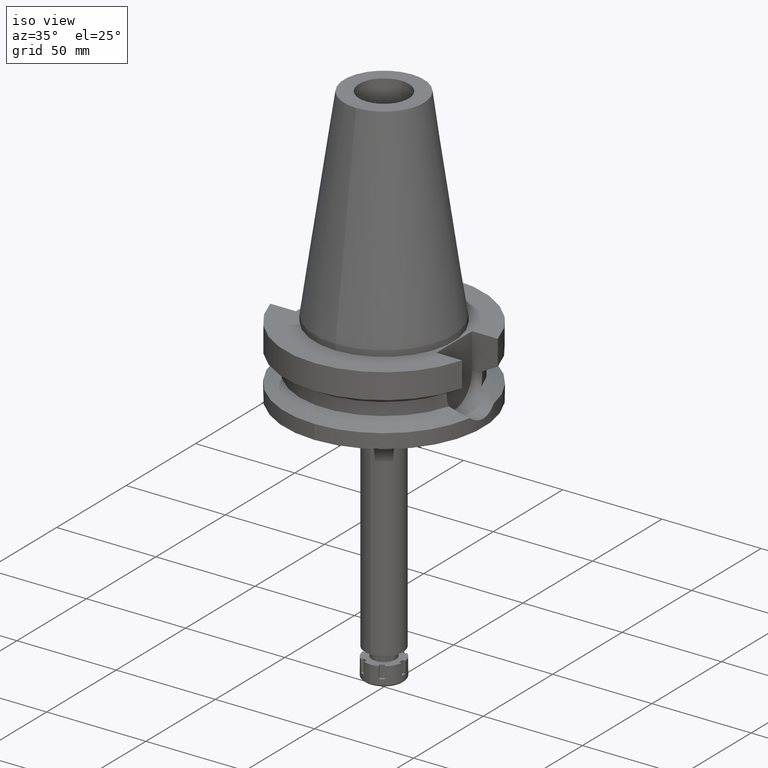
[diagram: clean part render]
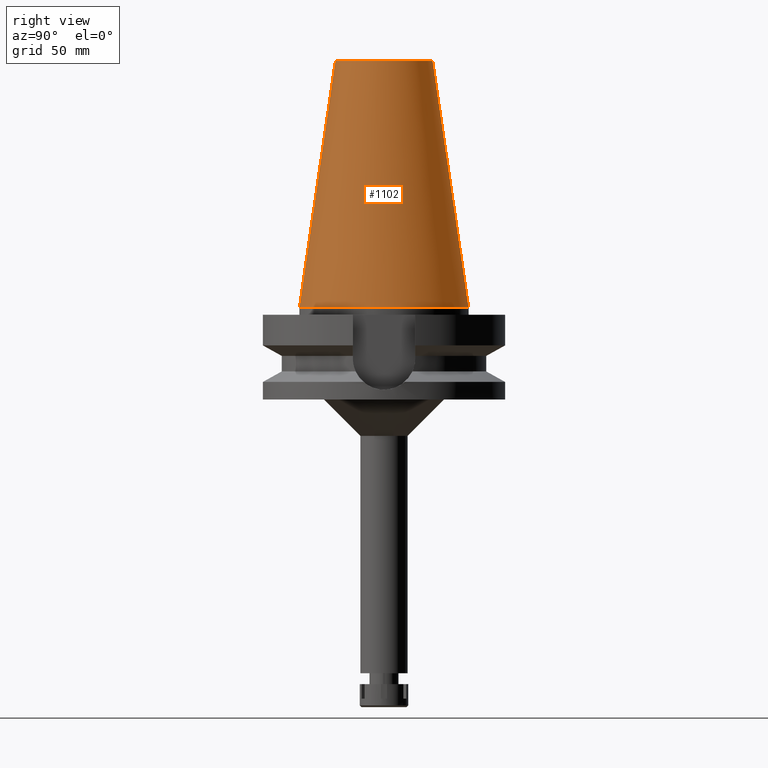
[diagram: tour spotlight — one face highlighted and labeled with its STEP entity id]
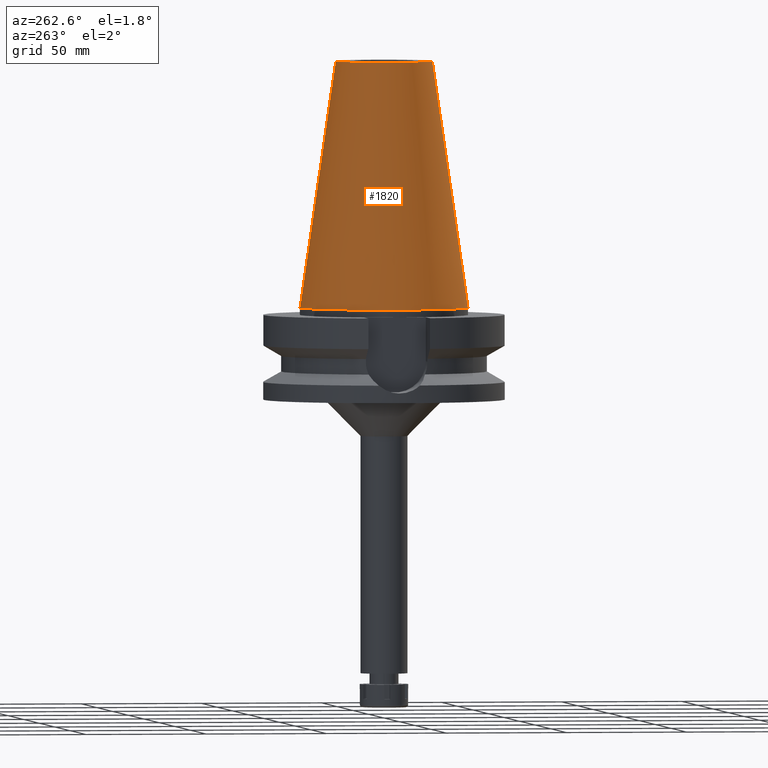
[diagram: tour spotlight — one face highlighted and labeled with its STEP entity id]
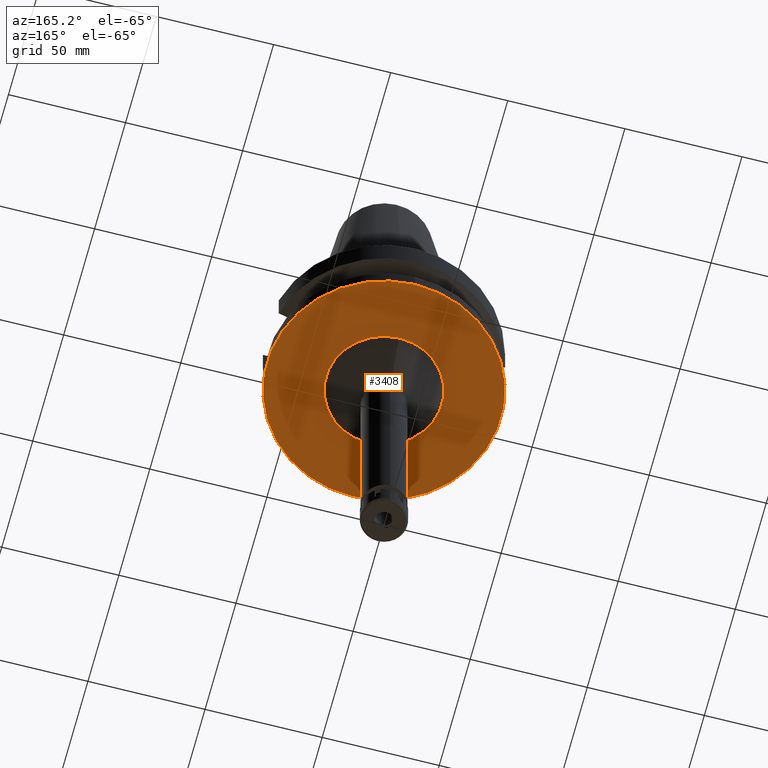
[diagram: tour spotlight — one face highlighted and labeled with its STEP entity id]
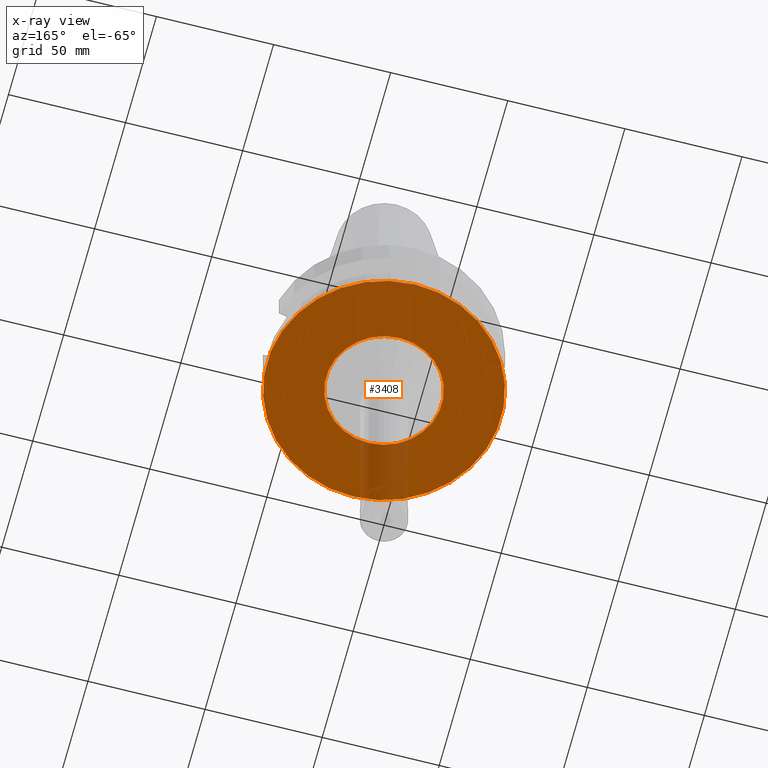
[diagram: x-ray of the same camera — body ghosted, this tour face saturated]
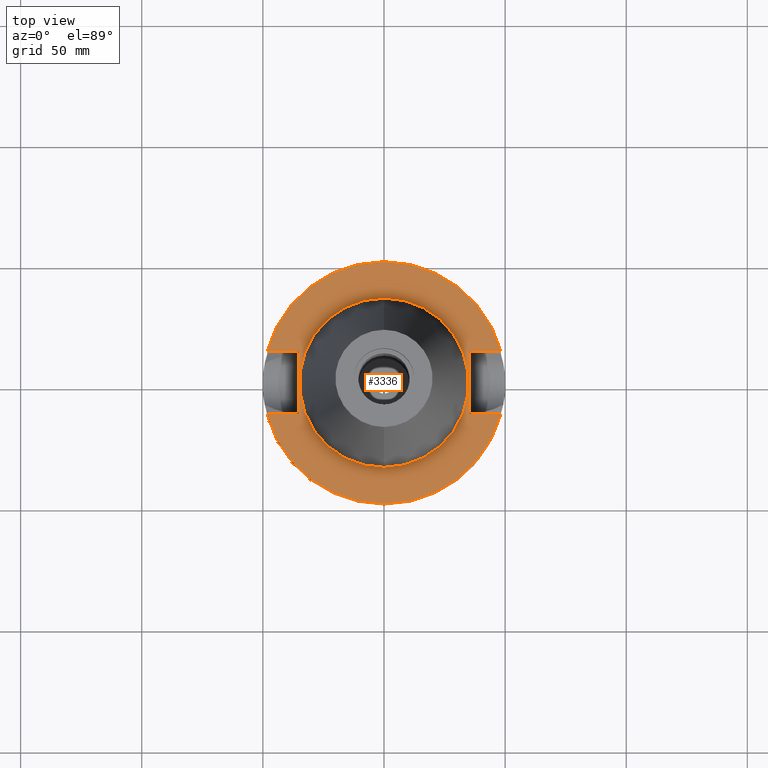
[diagram: tour spotlight — one face highlighted and labeled with its STEP entity id]
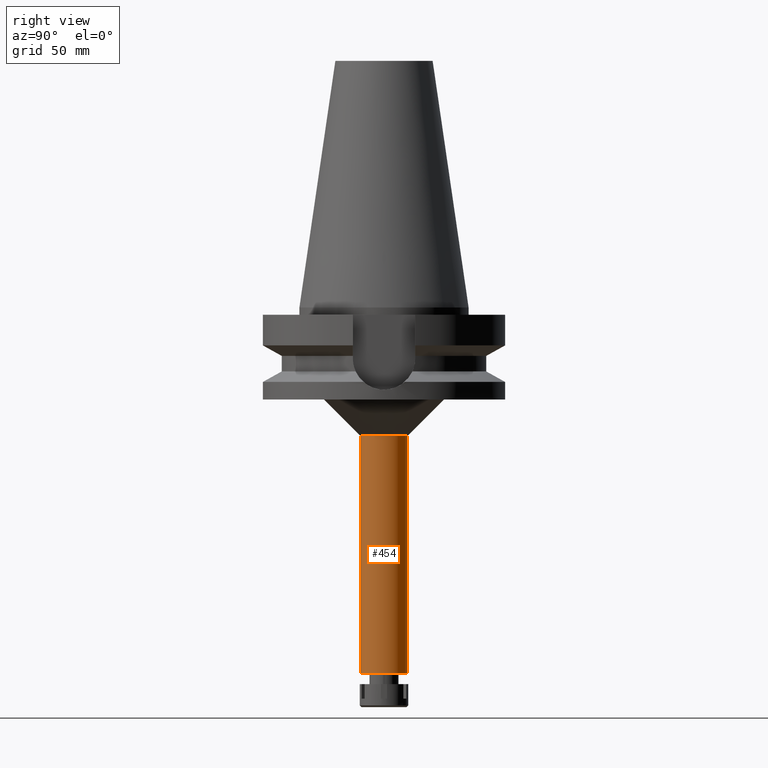
[diagram: tour spotlight — one face highlighted and labeled with its STEP entity id]
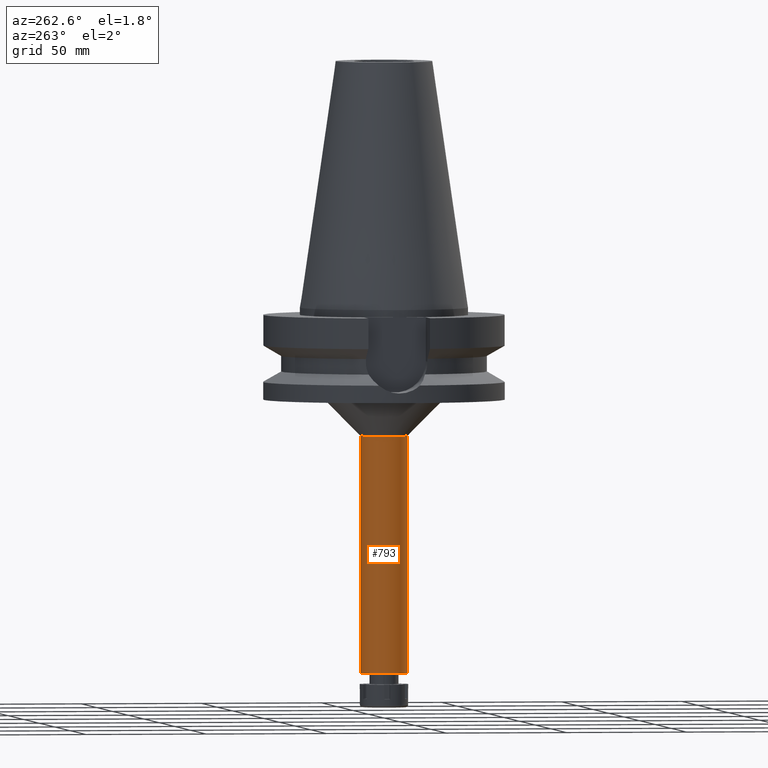
[diagram: tour spotlight — one face highlighted and labeled with its STEP entity id]
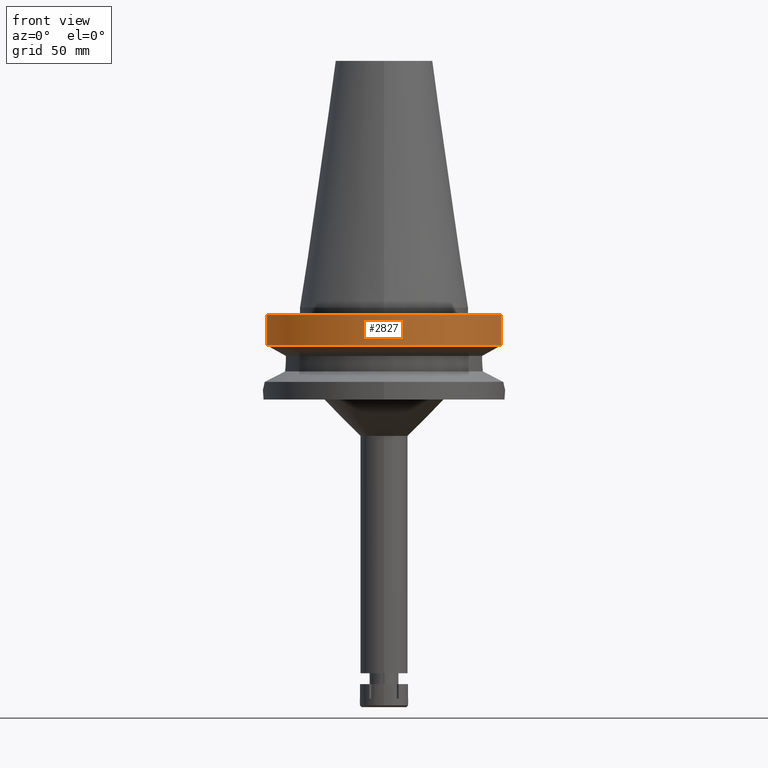
[diagram: tour spotlight — one face highlighted and labeled with its STEP entity id]
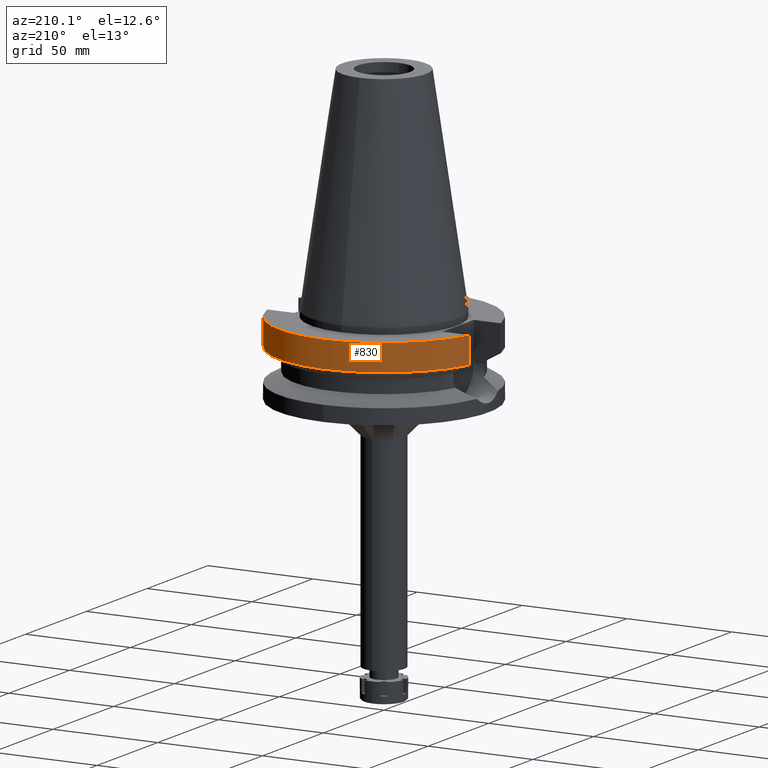
[diagram: tour spotlight — one face highlighted and labeled with its STEP entity id]
A machine part: a face-by-face anatomy tour. The part has 93 B-rep faces; the first image is the clean iso view, then the 8 largest visible faces are spotlighted one at a time (largest first), each with its STEP entity span.

Face 1 — right view, entity #1102. In plain terms, the highlighted conical surface has half-angle 8.297 deg.
Definition (entity closure, byte-faithful):
#1 = EDGE_CURVE ( 'NONE', #2407, #212, #565, .T. ) ;
#57 = CIRCLE ( 'NONE', #2155, 34.92499999999999716 ) ;
#124 = CIRCLE ( 'NONE', #1556, 20.07942971896000017 ) ;
#212 = VERTEX_POINT ( 'NONE', #3314 ) ;
#266 = ORIENTED_EDGE ( 'NONE', *, *, #1940, .F. ) ;
#565 = LINE ( 'NONE', #1148, #3692 ) ;
#566 = DIRECTION ( 'NONE',  ( 0.0000000000000000000, -1.000000000000000000, 0.0000000000000000000 ) ) ;
#676 = DIRECTION ( 'NONE',  ( 0.0000000000000000000, 1.000000000000000000, 0.0000000000000000000 ) ) ;
#795 = EDGE_CURVE ( 'NONE', #1790, #2407, #124, .T. ) ;
#939 = CARTESIAN_POINT ( 'NONE',  ( 0.0000000000000000000, 20.07942971896000017, 101.7999999999999972 ) ) ;
#957 = CARTESIAN_POINT ( 'NONE',  ( 0.0000000000000000000, 1.847992019912999597E-14, 6.252776074689000785E-13 ) ) ;
#972 = ORIENTED_EDGE ( 'NONE', *, *, #1, .T. ) ;
#1102 = ADVANCED_FACE ( 'NONE', ( #2885 ), #2315, .T. ) ;
#1148 = CARTESIAN_POINT ( 'NONE',  ( 0.0000000000000000000, -20.07942971896000017, 101.7999999999999972 ) ) ;
#1300 = ORIENTED_EDGE ( 'NONE', *, *, #3204, .F. ) ;
#1359 = AXIS2_PLACEMENT_3D ( 'NONE', #1422, #1705, #566 ) ;
#1422 = CARTESIAN_POINT ( 'NONE',  ( 0.0000000000000000000, 1.847992019912999597E-14, 50.89999999999999858 ) ) ;
#1450 = ORIENTED_EDGE ( 'NONE', *, *, #795, .T. ) ;
#1525 = DIRECTION ( 'NONE',  ( 0.0000000000000000000, 0.0000000000000000000, -1.000000000000000000 ) ) ;
#1542 = DIRECTION ( 'NONE',  ( 0.0000000000000000000, 1.000000000000000000, 0.0000000000000000000 ) ) ;
#1556 = AXIS2_PLACEMENT_3D ( 'NONE', #2087, #1525, #1542 ) ;
#1693 = EDGE_LOOP ( 'NONE', ( #1450, #972, #266, #1300 ) ) ;
#1705 = DIRECTION ( 'NONE',  ( 0.0000000000000000000, 0.0000000000000000000, -1.000000000000000000 ) ) ;
#1789 = CARTESIAN_POINT ( 'NONE',  ( 0.0000000000000000000, 20.07942971896000017, 101.7999999999999972 ) ) ;
#1790 = VERTEX_POINT ( 'NONE', #939 ) ;
#1940 = EDGE_CURVE ( 'NONE', #2178, #212, #57, .T. ) ;
#2087 = CARTESIAN_POINT ( 'NONE',  ( 0.0000000000000000000, 1.847992019912999597E-14, 101.7999999999999972 ) ) ;
#2155 = AXIS2_PLACEMENT_3D ( 'NONE', #957, #3236, #676 ) ;
#2178 = VERTEX_POINT ( 'NONE', #3473 ) ;
#2315 = CONICAL_SURFACE ( 'NONE', #1359, 27.50221485948000222, 0.1448099680379422438 ) ;
#2365 = LINE ( 'NONE', #1789, #2460 ) ;
#2407 = VERTEX_POINT ( 'NONE', #3548 ) ;
#2460 = VECTOR ( 'NONE', #2889, 1000.000000000000114 ) ;
#2544 = DIRECTION ( 'NONE',  ( 0.0000000000000000000, -0.1443043893538948075, -0.9895333461855641000 ) ) ;
#2885 = FACE_OUTER_BOUND ( 'NONE', #1693, .T. ) ;
#2889 = DIRECTION ( 'NONE',  ( 0.0000000000000000000, 0.1443043893538948075, -0.9895333461855641000 ) ) ;
#3204 = EDGE_CURVE ( 'NONE', #1790, #2178, #2365, .T. ) ;
#3236 = DIRECTION ( 'NONE',  ( 0.0000000000000000000, 0.0000000000000000000, -1.000000000000000000 ) ) ;
#3314 = CARTESIAN_POINT ( 'NONE',  ( 0.0000000000000000000, -34.92499999999999716, 5.471179065352999633E-13 ) ) ;
#3473 = CARTESIAN_POINT ( 'NONE',  ( 0.0000000000000000000, 34.92499999999999716, 5.471179065352999633E-13 ) ) ;
#3548 = CARTESIAN_POINT ( 'NONE',  ( 0.0000000000000000000, -20.07942971896000017, 101.7999999999999972 ) ) ;
#3692 = VECTOR ( 'NONE', #2544, 1000.000000000000114 ) ;

Face 2 — auxiliary view, entity #1820. In plain terms, the highlighted conical surface has half-angle 8.297 deg.
Definition (entity closure, byte-faithful):
#1 = EDGE_CURVE ( 'NONE', #2407, #212, #565, .T. ) ;
#94 = DIRECTION ( 'NONE',  ( 0.0000000000000000000, 0.0000000000000000000, -1.000000000000000000 ) ) ;
#117 = CIRCLE ( 'NONE', #2503, 20.07942971896000017 ) ;
#152 = DIRECTION ( 'NONE',  ( 0.0000000000000000000, -1.000000000000000000, 0.0000000000000000000 ) ) ;
#167 = FACE_OUTER_BOUND ( 'NONE', #1062, .T. ) ;
#212 = VERTEX_POINT ( 'NONE', #3314 ) ;
#460 = CARTESIAN_POINT ( 'NONE',  ( 0.0000000000000000000, 1.847992019912999597E-14, 50.89999999999999858 ) ) ;
#561 = DIRECTION ( 'NONE',  ( 0.0000000000000000000, 0.0000000000000000000, -1.000000000000000000 ) ) ;
#565 = LINE ( 'NONE', #1148, #3692 ) ;
#649 = EDGE_CURVE ( 'NONE', #212, #2178, #1073, .T. ) ;
#883 = ORIENTED_EDGE ( 'NONE', *, *, #1516, .T. ) ;
#939 = CARTESIAN_POINT ( 'NONE',  ( 0.0000000000000000000, 20.07942971896000017, 101.7999999999999972 ) ) ;
#1062 = EDGE_LOOP ( 'NONE', ( #1585, #1581, #883, #1496 ) ) ;
#1073 = CIRCLE ( 'NONE', #2263, 34.92499999999999716 ) ;
#1148 = CARTESIAN_POINT ( 'NONE',  ( 0.0000000000000000000, -20.07942971896000017, 101.7999999999999972 ) ) ;
#1326 = DIRECTION ( 'NONE',  ( 0.0000000000000000000, -1.000000000000000000, 0.0000000000000000000 ) ) ;
#1418 = CARTESIAN_POINT ( 'NONE',  ( 0.0000000000000000000, 1.847992019912999597E-14, 101.7999999999999972 ) ) ;
#1496 = ORIENTED_EDGE ( 'NONE', *, *, #3204, .T. ) ;
#1516 = EDGE_CURVE ( 'NONE', #2407, #1790, #117, .T. ) ;
#1581 = ORIENTED_EDGE ( 'NONE', *, *, #1, .F. ) ;
#1585 = ORIENTED_EDGE ( 'NONE', *, *, #649, .F. ) ;
#1789 = CARTESIAN_POINT ( 'NONE',  ( 0.0000000000000000000, 20.07942971896000017, 101.7999999999999972 ) ) ;
#1790 = VERTEX_POINT ( 'NONE', #939 ) ;
#1820 = ADVANCED_FACE ( 'NONE', ( #167 ), #2918, .T. ) ;
#2178 = VERTEX_POINT ( 'NONE', #3473 ) ;
#2232 = DIRECTION ( 'NONE',  ( 0.0000000000000000000, 0.0000000000000000000, -1.000000000000000000 ) ) ;
#2263 = AXIS2_PLACEMENT_3D ( 'NONE', #3587, #2232, #1326 ) ;
#2365 = LINE ( 'NONE', #1789, #2460 ) ;
#2384 = AXIS2_PLACEMENT_3D ( 'NONE', #460, #94, #152 ) ;
#2407 = VERTEX_POINT ( 'NONE', #3548 ) ;
#2460 = VECTOR ( 'NONE', #2889, 1000.000000000000114 ) ;
#2503 = AXIS2_PLACEMENT_3D ( 'NONE', #1418, #561, #2560 ) ;
#2544 = DIRECTION ( 'NONE',  ( 0.0000000000000000000, -0.1443043893538948075, -0.9895333461855641000 ) ) ;
#2560 = DIRECTION ( 'NONE',  ( 0.0000000000000000000, -1.000000000000000000, 0.0000000000000000000 ) ) ;
#2889 = DIRECTION ( 'NONE',  ( 0.0000000000000000000, 0.1443043893538948075, -0.9895333461855641000 ) ) ;
#2918 = CONICAL_SURFACE ( 'NONE', #2384, 27.50221485948000222, 0.1448099680379422438 ) ;
#3204 = EDGE_CURVE ( 'NONE', #1790, #2178, #2365, .T. ) ;
#3314 = CARTESIAN_POINT ( 'NONE',  ( 0.0000000000000000000, -34.92499999999999716, 5.471179065352999633E-13 ) ) ;
#3473 = CARTESIAN_POINT ( 'NONE',  ( 0.0000000000000000000, 34.92499999999999716, 5.471179065352999633E-13 ) ) ;
#3548 = CARTESIAN_POINT ( 'NONE',  ( 0.0000000000000000000, -20.07942971896000017, 101.7999999999999972 ) ) ;
#3587 = CARTESIAN_POINT ( 'NONE',  ( 0.0000000000000000000, 1.847992019912999597E-14, 6.252776074689000785E-13 ) ) ;
#3692 = VECTOR ( 'NONE', #2544, 1000.000000000000114 ) ;

Face 3 — auxiliary view, entity #3408. An x-ray twin of the same camera follows (body ghosted, this face saturated) — the face is partly hidden behind the body. In plain terms, the highlighted planar face has unit normal (0, 0, -1).
Definition (entity closure, byte-faithful):
#433 = CIRCLE ( 'NONE', #2634, 24.75000000000000000 ) ;
#616 = DIRECTION ( 'NONE',  ( 0.0000000000000000000, -1.000000000000000000, 0.0000000000000000000 ) ) ;
#641 = VERTEX_POINT ( 'NONE', #3656 ) ;
#768 = VERTEX_POINT ( 'NONE', #2946 ) ;
#818 = CARTESIAN_POINT ( 'NONE',  ( 0.0000000000000000000, 50.00000000000000000, -38.00000000000000000 ) ) ;
#824 = DIRECTION ( 'NONE',  ( 0.0000000000000000000, -1.000000000000000000, 0.0000000000000000000 ) ) ;
#991 = DIRECTION ( 'NONE',  ( 0.0000000000000000000, 1.000000000000000000, 0.0000000000000000000 ) ) ;
#1014 = DIRECTION ( 'NONE',  ( 0.0000000000000000000, 0.0000000000000000000, 1.000000000000000000 ) ) ;
#1052 = FACE_BOUND ( 'NONE', #2483, .T. ) ;
#1248 = DIRECTION ( 'NONE',  ( 0.0000000000000000000, 0.0000000000000000000, -1.000000000000000000 ) ) ;
#1285 = ORIENTED_EDGE ( 'NONE', *, *, #2779, .F. ) ;
#1360 = FACE_OUTER_BOUND ( 'NONE', #1507, .T. ) ;
#1474 = CARTESIAN_POINT ( 'NONE',  ( 0.0000000000000000000, 0.0000000000000000000, -38.00000000000000000 ) ) ;
#1507 = EDGE_LOOP ( 'NONE', ( #3310, #1751 ) ) ;
#1664 = AXIS2_PLACEMENT_3D ( 'NONE', #1853, #1014, #991 ) ;
#1751 = ORIENTED_EDGE ( 'NONE', *, *, #3255, .F. ) ;
#1848 = EDGE_CURVE ( 'NONE', #1950, #641, #2625, .T. ) ;
#1853 = CARTESIAN_POINT ( 'NONE',  ( 0.0000000000000000000, 2.631643506687999657E-14, -38.00000000000000000 ) ) ;
#1928 = CARTESIAN_POINT ( 'NONE',  ( 0.0000000000000000000, -24.75000000000000000, -38.00000000000000000 ) ) ;
#1945 = DIRECTION ( 'NONE',  ( 0.0000000000000000000, 0.0000000000000000000, -1.000000000000000000 ) ) ;
#1950 = VERTEX_POINT ( 'NONE', #818 ) ;
#2038 = EDGE_CURVE ( 'NONE', #768, #2101, #2987, .T. ) ;
#2088 = CARTESIAN_POINT ( 'NONE',  ( 0.0000000000000000000, 2.631643506687999657E-14, -38.00000000000000000 ) ) ;
#2101 = VERTEX_POINT ( 'NONE', #1928 ) ;
#2192 = CARTESIAN_POINT ( 'NONE',  ( 0.0000000000000000000, 0.0000000000000000000, -38.00000000000000000 ) ) ;
#2239 = PLANE ( 'NONE',  #2998 ) ;
#2321 = AXIS2_PLACEMENT_3D ( 'NONE', #2803, #1945, #2824 ) ;
#2335 = AXIS2_PLACEMENT_3D ( 'NONE', #2088, #2591, #3163 ) ;
#2483 = EDGE_LOOP ( 'NONE', ( #2685, #1285 ) ) ;
#2591 = DIRECTION ( 'NONE',  ( 0.0000000000000000000, 0.0000000000000000000, 1.000000000000000000 ) ) ;
#2625 = CIRCLE ( 'NONE', #1664, 50.00000000000000000 ) ;
#2634 = AXIS2_PLACEMENT_3D ( 'NONE', #1474, #1248, #616 ) ;
#2685 = ORIENTED_EDGE ( 'NONE', *, *, #2038, .F. ) ;
#2779 = EDGE_CURVE ( 'NONE', #2101, #768, #433, .T. ) ;
#2803 = CARTESIAN_POINT ( 'NONE',  ( 0.0000000000000000000, 0.0000000000000000000, -38.00000000000000000 ) ) ;
#2824 = DIRECTION ( 'NONE',  ( 0.0000000000000000000, 1.000000000000000000, 0.0000000000000000000 ) ) ;
#2946 = CARTESIAN_POINT ( 'NONE',  ( 0.0000000000000000000, 24.75000000000000000, -38.00000000000000000 ) ) ;
#2987 = CIRCLE ( 'NONE', #2321, 24.75000000000000000 ) ;
#2998 = AXIS2_PLACEMENT_3D ( 'NONE', #2192, #3332, #824 ) ;
#3163 = DIRECTION ( 'NONE',  ( 0.0000000000000000000, -1.000000000000000000, 0.0000000000000000000 ) ) ;
#3255 = EDGE_CURVE ( 'NONE', #641, #1950, #3405, .T. ) ;
#3310 = ORIENTED_EDGE ( 'NONE', *, *, #1848, .F. ) ;
#3332 = DIRECTION ( 'NONE',  ( 0.0000000000000000000, 0.0000000000000000000, -1.000000000000000000 ) ) ;
#3405 = CIRCLE ( 'NONE', #2335, 50.00000000000000000 ) ;
#3408 = ADVANCED_FACE ( 'NONE', ( #1360, #1052 ), #2239, .T. ) ;
#3656 = CARTESIAN_POINT ( 'NONE',  ( 0.0000000000000000000, -50.00000000000000000, -38.00000000000000000 ) ) ;

Face 4 — top view, entity #3336. In plain terms, the highlighted planar face has unit normal (0, 0, -1).
Definition (entity closure, byte-faithful):
#18 = DIRECTION ( 'NONE',  ( 1.000000000000000000, 0.0000000000000000000, 0.0000000000000000000 ) ) ;
#122 = ORIENTED_EDGE ( 'NONE', *, *, #3463, .F. ) ;
#193 = EDGE_LOOP ( 'NONE', ( #1843, #1640 ) ) ;
#235 = VECTOR ( 'NONE', #826, 1000.000000000000000 ) ;
#306 = EDGE_CURVE ( 'NONE', #1891, #1307, #3211, .T. ) ;
#322 = LINE ( 'NONE', #3669, #235 ) ;
#372 = VECTOR ( 'NONE', #3482, 1000.000000000000000 ) ;
#392 = ORIENTED_EDGE ( 'NONE', *, *, #1313, .F. ) ;
#485 = VECTOR ( 'NONE', #1446, 1000.000000000000000 ) ;
#503 = LINE ( 'NONE', #3116, #3039 ) ;
#536 = DIRECTION ( 'NONE',  ( 0.0000000000000000000, -1.000000000000000000, 0.0000000000000000000 ) ) ;
#596 = CIRCLE ( 'NONE', #2099, 34.92499999999999716 ) ;
#601 = LINE ( 'NONE', #620, #2704 ) ;
#620 = CARTESIAN_POINT ( 'NONE',  ( 35.39999999999999858, -12.84999999999999964, -3.000000000000000000 ) ) ;
#622 = DIRECTION ( 'NONE',  ( 0.0000000000000000000, 1.000000000000000000, 0.0000000000000000000 ) ) ;
#719 = DIRECTION ( 'NONE',  ( 0.0000000000000000000, 1.000000000000000000, 0.0000000000000000000 ) ) ;
#736 = CARTESIAN_POINT ( 'NONE',  ( -35.39999999999999858, 12.84999999999999964, -3.000000000000000000 ) ) ;
#782 = CARTESIAN_POINT ( 'NONE',  ( -35.39999999999999858, 12.84999999999999964, -3.000000000000000000 ) ) ;
#791 = ORIENTED_EDGE ( 'NONE', *, *, #1541, .F. ) ;
#826 = DIRECTION ( 'NONE',  ( -1.000000000000000000, 0.0000000000000000000, 0.0000000000000000000 ) ) ;
#967 = DIRECTION ( 'NONE',  ( 0.0000000000000000000, 1.000000000000000000, 0.0000000000000000000 ) ) ;
#983 = CARTESIAN_POINT ( 'NONE',  ( 0.0000000000000000000, 2.631643506687999657E-14, -3.000000000000000000 ) ) ;
#1020 = DIRECTION ( 'NONE',  ( 0.0000000000000000000, 0.0000000000000000000, -1.000000000000000000 ) ) ;
#1038 = FACE_BOUND ( 'NONE', #193, .T. ) ;
#1067 = CIRCLE ( 'NONE', #1174, 34.92499999999999716 ) ;
#1068 = FACE_OUTER_BOUND ( 'NONE', #1874, .T. ) ;
#1070 = CIRCLE ( 'NONE', #3395, 50.00000000000000000 ) ;
#1153 = EDGE_CURVE ( 'NONE', #1767, #1941, #322, .T. ) ;
#1156 = CARTESIAN_POINT ( 'NONE',  ( 0.0000000000000000000, -34.92499999999999716, -3.000000000000000000 ) ) ;
#1174 = AXIS2_PLACEMENT_3D ( 'NONE', #983, #3525, #622 ) ;
#1181 = ORIENTED_EDGE ( 'NONE', *, *, #1153, .T. ) ;
#1190 = LINE ( 'NONE', #3462, #372 ) ;
#1193 = DIRECTION ( 'NONE',  ( 0.0000000000000000000, 0.0000000000000000000, -1.000000000000000000 ) ) ;
#1288 = EDGE_CURVE ( 'NONE', #3159, #3244, #1067, .T. ) ;
#1307 = VERTEX_POINT ( 'NONE', #2404 ) ;
#1313 = EDGE_CURVE ( 'NONE', #1307, #1785, #1661, .T. ) ;
#1317 = CARTESIAN_POINT ( 'NONE',  ( 0.0000000000000000000, 1.187907395172999884E-14, -3.000000000000000000 ) ) ;
#1402 = DIRECTION ( 'NONE',  ( 0.0000000000000000000, -1.000000000000000000, 0.0000000000000000000 ) ) ;
#1446 = DIRECTION ( 'NONE',  ( -1.000000000000000000, 0.0000000000000000000, 0.0000000000000000000 ) ) ;
#1540 = ORIENTED_EDGE ( 'NONE', *, *, #3481, .T. ) ;
#1541 = EDGE_CURVE ( 'NONE', #2271, #1941, #1070, .T. ) ;
#1550 = EDGE_CURVE ( 'NONE', #1767, #1891, #503, .T. ) ;
#1578 = CARTESIAN_POINT ( 'NONE',  ( 35.39999999999999858, 12.84999999999999964, -3.000000000000000000 ) ) ;
#1640 = ORIENTED_EDGE ( 'NONE', *, *, #2993, .F. ) ;
#1661 = CIRCLE ( 'NONE', #3051, 50.00000000000000000 ) ;
#1718 = CARTESIAN_POINT ( 'NONE',  ( -35.39999999999999858, -12.84999999999999964, -3.000000000000000000 ) ) ;
#1730 = CARTESIAN_POINT ( 'NONE',  ( 0.0000000000000000000, 2.631643506687999657E-14, -3.000000000000000000 ) ) ;
#1755 = VERTEX_POINT ( 'NONE', #2913 ) ;
#1767 = VERTEX_POINT ( 'NONE', #1718 ) ;
#1785 = VERTEX_POINT ( 'NONE', #3694 ) ;
#1815 = CARTESIAN_POINT ( 'NONE',  ( -48.32057015392000210, -12.84999999999999964, -3.000000000000000000 ) ) ;
#1843 = ORIENTED_EDGE ( 'NONE', *, *, #1288, .F. ) ;
#1874 = EDGE_LOOP ( 'NONE', ( #1181, #791, #2084, #122, #1540, #392, #2028, #2834 ) ) ;
#1891 = VERTEX_POINT ( 'NONE', #736 ) ;
#1895 = CARTESIAN_POINT ( 'NONE',  ( 0.0000000000000000000, 2.631643506687999657E-14, -3.000000000000000000 ) ) ;
#1916 = DIRECTION ( 'NONE',  ( 0.0000000000000000000, -1.000000000000000000, 0.0000000000000000000 ) ) ;
#1919 = VECTOR ( 'NONE', #1402, 1000.000000000000000 ) ;
#1941 = VERTEX_POINT ( 'NONE', #1815 ) ;
#2016 = LINE ( 'NONE', #3130, #1919 ) ;
#2028 = ORIENTED_EDGE ( 'NONE', *, *, #306, .F. ) ;
#2084 = ORIENTED_EDGE ( 'NONE', *, *, #3504, .F. ) ;
#2099 = AXIS2_PLACEMENT_3D ( 'NONE', #1730, #2553, #536 ) ;
#2271 = VERTEX_POINT ( 'NONE', #2611 ) ;
#2386 = CARTESIAN_POINT ( 'NONE',  ( 0.0000000000000000000, 34.92499999999999716, -3.000000000000000000 ) ) ;
#2400 = AXIS2_PLACEMENT_3D ( 'NONE', #1317, #2509, #2475 ) ;
#2404 = CARTESIAN_POINT ( 'NONE',  ( -48.32057015392000210, 12.84999999999999964, -3.000000000000000000 ) ) ;
#2462 = PLANE ( 'NONE',  #2400 ) ;
#2475 = DIRECTION ( 'NONE',  ( 0.0000000000000000000, -1.000000000000000000, 0.0000000000000000000 ) ) ;
#2509 = DIRECTION ( 'NONE',  ( 0.0000000000000000000, 0.0000000000000000000, -1.000000000000000000 ) ) ;
#2553 = DIRECTION ( 'NONE',  ( 0.0000000000000000000, 0.0000000000000000000, 1.000000000000000000 ) ) ;
#2611 = CARTESIAN_POINT ( 'NONE',  ( 48.32057015392000210, -12.84999999999999964, -3.000000000000000000 ) ) ;
#2704 = VECTOR ( 'NONE', #18, 1000.000000000000000 ) ;
#2834 = ORIENTED_EDGE ( 'NONE', *, *, #1550, .F. ) ;
#2913 = CARTESIAN_POINT ( 'NONE',  ( 35.39999999999999858, -12.84999999999999964, -3.000000000000000000 ) ) ;
#2993 = EDGE_CURVE ( 'NONE', #3244, #3159, #596, .T. ) ;
#3039 = VECTOR ( 'NONE', #719, 1000.000000000000000 ) ;
#3051 = AXIS2_PLACEMENT_3D ( 'NONE', #3178, #1193, #967 ) ;
#3116 = CARTESIAN_POINT ( 'NONE',  ( -35.39999999999999858, -12.84999999999999964, -3.000000000000000000 ) ) ;
#3130 = CARTESIAN_POINT ( 'NONE',  ( 35.39999999999999858, 12.84999999999999964, -3.000000000000000000 ) ) ;
#3159 = VERTEX_POINT ( 'NONE', #2386 ) ;
#3178 = CARTESIAN_POINT ( 'NONE',  ( 0.0000000000000000000, 2.631643506687999657E-14, -3.000000000000000000 ) ) ;
#3211 = LINE ( 'NONE', #782, #485 ) ;
#3244 = VERTEX_POINT ( 'NONE', #1156 ) ;
#3336 = ADVANCED_FACE ( 'NONE', ( #1068, #1038 ), #2462, .F. ) ;
#3395 = AXIS2_PLACEMENT_3D ( 'NONE', #1895, #1020, #1916 ) ;
#3462 = CARTESIAN_POINT ( 'NONE',  ( 35.39999999999999858, 12.84999999999999964, -3.000000000000000000 ) ) ;
#3463 = EDGE_CURVE ( 'NONE', #3579, #1755, #2016, .T. ) ;
#3481 = EDGE_CURVE ( 'NONE', #3579, #1785, #1190, .T. ) ;
#3482 = DIRECTION ( 'NONE',  ( 1.000000000000000000, 0.0000000000000000000, 0.0000000000000000000 ) ) ;
#3504 = EDGE_CURVE ( 'NONE', #1755, #2271, #601, .T. ) ;
#3525 = DIRECTION ( 'NONE',  ( 0.0000000000000000000, 0.0000000000000000000, 1.000000000000000000 ) ) ;
#3579 = VERTEX_POINT ( 'NONE', #1578 ) ;
#3669 = CARTESIAN_POINT ( 'NONE',  ( -35.39999999999999858, -12.84999999999999964, -3.000000000000000000 ) ) ;
#3694 = CARTESIAN_POINT ( 'NONE',  ( 48.32057015392000210, 12.84999999999999964, -3.000000000000000000 ) ) ;

Face 5 — right view, entity #454. In plain terms, the highlighted cylindrical surface (edge-blend (fillet) strip) has radius 9.75 mm, axis along (0, 0, -1).
Definition (entity closure, byte-faithful):
#139 = CARTESIAN_POINT ( 'NONE',  ( 0.0000000000000000000, 0.0000000000000000000, -53.00000000000000000 ) ) ;
#172 = EDGE_CURVE ( 'NONE', #2146, #3651, #831, .T. ) ;
#227 = EDGE_CURVE ( 'NONE', #2146, #2788, #1627, .T. ) ;
#239 = CARTESIAN_POINT ( 'NONE',  ( 0.0000000000000000000, -9.750000000000000000, -151.0000000000000000 ) ) ;
#364 = EDGE_CURVE ( 'NONE', #3651, #642, #1754, .T. ) ;
#454 = ADVANCED_FACE ( 'NONE', ( #2719 ), #2428, .T. ) ;
#642 = VERTEX_POINT ( 'NONE', #239 ) ;
#831 = CIRCLE ( 'NONE', #2023, 9.750000000000000000 ) ;
#1012 = CARTESIAN_POINT ( 'NONE',  ( 0.0000000000000000000, 2.631643506687999657E-14, 114.8900000000000006 ) ) ;
#1213 = CARTESIAN_POINT ( 'NONE',  ( 0.0000000000000000000, -9.750000000000000000, -53.00000000000000000 ) ) ;
#1230 = ORIENTED_EDGE ( 'NONE', *, *, #172, .T. ) ;
#1281 = DIRECTION ( 'NONE',  ( 0.0000000000000000000, 0.0000000000000000000, -1.000000000000000000 ) ) ;
#1608 = CARTESIAN_POINT ( 'NONE',  ( 0.0000000000000000000, 9.750000000000000000, -53.00000000000000000 ) ) ;
#1627 = LINE ( 'NONE', #1608, #2923 ) ;
#1754 = LINE ( 'NONE', #1213, #3150 ) ;
#1870 = DIRECTION ( 'NONE',  ( 0.0000000000000000000, 0.0000000000000000000, -1.000000000000000000 ) ) ;
#2023 = AXIS2_PLACEMENT_3D ( 'NONE', #139, #1281, #2042 ) ;
#2031 = AXIS2_PLACEMENT_3D ( 'NONE', #3038, #2479, #2800 ) ;
#2042 = DIRECTION ( 'NONE',  ( 0.0000000000000000000, 1.000000000000000000, 0.0000000000000000000 ) ) ;
#2076 = CARTESIAN_POINT ( 'NONE',  ( 0.0000000000000000000, 9.750000000000000000, -151.0000000000000000 ) ) ;
#2111 = ORIENTED_EDGE ( 'NONE', *, *, #2549, .T. ) ;
#2146 = VERTEX_POINT ( 'NONE', #2249 ) ;
#2164 = ORIENTED_EDGE ( 'NONE', *, *, #364, .T. ) ;
#2249 = CARTESIAN_POINT ( 'NONE',  ( 0.0000000000000000000, 9.750000000000000000, -53.00000000000000000 ) ) ;
#2428 = CYLINDRICAL_SURFACE ( 'NONE', #2811, 9.750000000000000000 ) ;
#2479 = DIRECTION ( 'NONE',  ( 0.0000000000000000000, 0.0000000000000000000, 1.000000000000000000 ) ) ;
#2549 = EDGE_CURVE ( 'NONE', #642, #2788, #2759, .T. ) ;
#2674 = DIRECTION ( 'NONE',  ( 0.0000000000000000000, -1.000000000000000000, 0.0000000000000000000 ) ) ;
#2719 = FACE_OUTER_BOUND ( 'NONE', #3472, .T. ) ;
#2727 = CARTESIAN_POINT ( 'NONE',  ( 0.0000000000000000000, -9.750000000000000000, -53.00000000000000000 ) ) ;
#2737 = ORIENTED_EDGE ( 'NONE', *, *, #227, .F. ) ;
#2759 = CIRCLE ( 'NONE', #2031, 9.750000000000000000 ) ;
#2788 = VERTEX_POINT ( 'NONE', #2076 ) ;
#2800 = DIRECTION ( 'NONE',  ( 0.0000000000000000000, -1.000000000000000000, 0.0000000000000000000 ) ) ;
#2811 = AXIS2_PLACEMENT_3D ( 'NONE', #1012, #1870, #2674 ) ;
#2923 = VECTOR ( 'NONE', #3030, 1000.000000000000000 ) ;
#2958 = DIRECTION ( 'NONE',  ( 0.0000000000000000000, 0.0000000000000000000, -1.000000000000000000 ) ) ;
#3030 = DIRECTION ( 'NONE',  ( 0.0000000000000000000, 0.0000000000000000000, -1.000000000000000000 ) ) ;
#3038 = CARTESIAN_POINT ( 'NONE',  ( 0.0000000000000000000, 2.631643506687999657E-14, -151.0000000000000000 ) ) ;
#3150 = VECTOR ( 'NONE', #2958, 1000.000000000000000 ) ;
#3472 = EDGE_LOOP ( 'NONE', ( #1230, #2164, #2111, #2737 ) ) ;
#3651 = VERTEX_POINT ( 'NONE', #2727 ) ;

Face 6 — auxiliary view, entity #793. In plain terms, the highlighted cylindrical surface (edge-blend (fillet) strip) has radius 9.75 mm, axis along (0, 0, -1).
Definition (entity closure, byte-faithful):
#143 = CARTESIAN_POINT ( 'NONE',  ( 0.0000000000000000000, 2.631643506687999657E-14, -151.0000000000000000 ) ) ;
#227 = EDGE_CURVE ( 'NONE', #2146, #2788, #1627, .T. ) ;
#239 = CARTESIAN_POINT ( 'NONE',  ( 0.0000000000000000000, -9.750000000000000000, -151.0000000000000000 ) ) ;
#358 = ORIENTED_EDGE ( 'NONE', *, *, #680, .T. ) ;
#364 = EDGE_CURVE ( 'NONE', #3651, #642, #1754, .T. ) ;
#393 = DIRECTION ( 'NONE',  ( 0.0000000000000000000, -1.000000000000000000, 0.0000000000000000000 ) ) ;
#642 = VERTEX_POINT ( 'NONE', #239 ) ;
#644 = CYLINDRICAL_SURFACE ( 'NONE', #1727, 9.750000000000000000 ) ;
#680 = EDGE_CURVE ( 'NONE', #3651, #2146, #2025, .T. ) ;
#704 = FACE_OUTER_BOUND ( 'NONE', #2791, .T. ) ;
#722 = CIRCLE ( 'NONE', #2157, 9.750000000000000000 ) ;
#793 = ADVANCED_FACE ( 'NONE', ( #704 ), #644, .T. ) ;
#841 = EDGE_CURVE ( 'NONE', #2788, #642, #722, .T. ) ;
#900 = AXIS2_PLACEMENT_3D ( 'NONE', #1887, #1905, #2518 ) ;
#1213 = CARTESIAN_POINT ( 'NONE',  ( 0.0000000000000000000, -9.750000000000000000, -53.00000000000000000 ) ) ;
#1240 = DIRECTION ( 'NONE',  ( 0.0000000000000000000, 0.0000000000000000000, 1.000000000000000000 ) ) ;
#1608 = CARTESIAN_POINT ( 'NONE',  ( 0.0000000000000000000, 9.750000000000000000, -53.00000000000000000 ) ) ;
#1627 = LINE ( 'NONE', #1608, #2923 ) ;
#1711 = ORIENTED_EDGE ( 'NONE', *, *, #364, .F. ) ;
#1727 = AXIS2_PLACEMENT_3D ( 'NONE', #1788, #1826, #393 ) ;
#1754 = LINE ( 'NONE', #1213, #3150 ) ;
#1788 = CARTESIAN_POINT ( 'NONE',  ( 0.0000000000000000000, 2.631643506687999657E-14, 114.8900000000000006 ) ) ;
#1826 = DIRECTION ( 'NONE',  ( 0.0000000000000000000, 0.0000000000000000000, -1.000000000000000000 ) ) ;
#1887 = CARTESIAN_POINT ( 'NONE',  ( 0.0000000000000000000, 0.0000000000000000000, -53.00000000000000000 ) ) ;
#1905 = DIRECTION ( 'NONE',  ( 0.0000000000000000000, 0.0000000000000000000, -1.000000000000000000 ) ) ;
#2025 = CIRCLE ( 'NONE', #900, 9.750000000000000000 ) ;
#2076 = CARTESIAN_POINT ( 'NONE',  ( 0.0000000000000000000, 9.750000000000000000, -151.0000000000000000 ) ) ;
#2146 = VERTEX_POINT ( 'NONE', #2249 ) ;
#2157 = AXIS2_PLACEMENT_3D ( 'NONE', #143, #1240, #3245 ) ;
#2249 = CARTESIAN_POINT ( 'NONE',  ( 0.0000000000000000000, 9.750000000000000000, -53.00000000000000000 ) ) ;
#2518 = DIRECTION ( 'NONE',  ( 0.0000000000000000000, -1.000000000000000000, 0.0000000000000000000 ) ) ;
#2727 = CARTESIAN_POINT ( 'NONE',  ( 0.0000000000000000000, -9.750000000000000000, -53.00000000000000000 ) ) ;
#2788 = VERTEX_POINT ( 'NONE', #2076 ) ;
#2791 = EDGE_LOOP ( 'NONE', ( #3498, #1711, #358, #3035 ) ) ;
#2923 = VECTOR ( 'NONE', #3030, 1000.000000000000000 ) ;
#2958 = DIRECTION ( 'NONE',  ( 0.0000000000000000000, 0.0000000000000000000, -1.000000000000000000 ) ) ;
#3030 = DIRECTION ( 'NONE',  ( 0.0000000000000000000, 0.0000000000000000000, -1.000000000000000000 ) ) ;
#3035 = ORIENTED_EDGE ( 'NONE', *, *, #227, .T. ) ;
#3150 = VECTOR ( 'NONE', #2958, 1000.000000000000000 ) ;
#3245 = DIRECTION ( 'NONE',  ( 0.0000000000000000000, 1.000000000000000000, 0.0000000000000000000 ) ) ;
#3498 = ORIENTED_EDGE ( 'NONE', *, *, #841, .T. ) ;
#3651 = VERTEX_POINT ( 'NONE', #2727 ) ;

Face 7 — front view, entity #2827. In plain terms, the highlighted cylindrical surface (partial cylindrical patch) has radius 50 mm, axis along (0, 0, -1).
Definition (entity closure, byte-faithful):
#28 = LINE ( 'NONE', #1732, #1966 ) ;
#95 = ORIENTED_EDGE ( 'NONE', *, *, #2171, .F. ) ;
#248 = VECTOR ( 'NONE', #1176, 999.9999999999998863 ) ;
#440 = EDGE_LOOP ( 'NONE', ( #95, #2349, #1706, #2128 ) ) ;
#521 = DIRECTION ( 'NONE',  ( 0.0000000000000000000, -1.000000000000000000, 0.0000000000000000000 ) ) ;
#593 = AXIS2_PLACEMENT_3D ( 'NONE', #2484, #790, #521 ) ;
#790 = DIRECTION ( 'NONE',  ( 0.0000000000000000000, 0.0000000000000000000, 1.000000000000000000 ) ) ;
#1020 = DIRECTION ( 'NONE',  ( 0.0000000000000000000, 0.0000000000000000000, -1.000000000000000000 ) ) ;
#1070 = CIRCLE ( 'NONE', #3395, 50.00000000000000000 ) ;
#1176 = DIRECTION ( 'NONE',  ( -8.103519278860602309E-08, -3.047209459813850567E-07, -0.9999999999999503730 ) ) ;
#1291 = FACE_OUTER_BOUND ( 'NONE', #440, .T. ) ;
#1340 = CARTESIAN_POINT ( 'NONE',  ( 48.32057015392000210, -12.84999999999999964, -15.66269223573000069 ) ) ;
#1541 = EDGE_CURVE ( 'NONE', #2271, #1941, #1070, .T. ) ;
#1671 = AXIS2_PLACEMENT_3D ( 'NONE', #2429, #3043, #1906 ) ;
#1706 = ORIENTED_EDGE ( 'NONE', *, *, #3239, .F. ) ;
#1732 = CARTESIAN_POINT ( 'NONE',  ( -48.32056912814000071, -12.85000385727999905, -15.66265768250999990 ) ) ;
#1815 = CARTESIAN_POINT ( 'NONE',  ( -48.32057015392000210, -12.84999999999999964, -3.000000000000000000 ) ) ;
#1895 = CARTESIAN_POINT ( 'NONE',  ( 0.0000000000000000000, 2.631643506687999657E-14, -3.000000000000000000 ) ) ;
#1906 = DIRECTION ( 'NONE',  ( 0.0000000000000000000, -1.000000000000000000, 0.0000000000000000000 ) ) ;
#1916 = DIRECTION ( 'NONE',  ( 0.0000000000000000000, -1.000000000000000000, 0.0000000000000000000 ) ) ;
#1941 = VERTEX_POINT ( 'NONE', #1815 ) ;
#1966 = VECTOR ( 'NONE', #2891, 1000.000000000000114 ) ;
#2010 = EDGE_CURVE ( 'NONE', #3135, #2831, #3690, .T. ) ;
#2027 = CARTESIAN_POINT ( 'NONE',  ( 48.32057015392000210, -12.84999999999999964, -3.000000000000000000 ) ) ;
#2128 = ORIENTED_EDGE ( 'NONE', *, *, #1541, .T. ) ;
#2171 = EDGE_CURVE ( 'NONE', #3135, #1941, #28, .T. ) ;
#2271 = VERTEX_POINT ( 'NONE', #2611 ) ;
#2349 = ORIENTED_EDGE ( 'NONE', *, *, #2010, .T. ) ;
#2429 = CARTESIAN_POINT ( 'NONE',  ( 0.0000000000000000000, 2.631643506687999657E-14, 114.8900000000000006 ) ) ;
#2484 = CARTESIAN_POINT ( 'NONE',  ( 0.0000000000000000000, 1.006319759053999930E-14, -15.66269223573000069 ) ) ;
#2611 = CARTESIAN_POINT ( 'NONE',  ( 48.32057015392000210, -12.84999999999999964, -3.000000000000000000 ) ) ;
#2827 = ADVANCED_FACE ( 'NONE', ( #1291 ), #3292, .T. ) ;
#2831 = VERTEX_POINT ( 'NONE', #1340 ) ;
#2891 = DIRECTION ( 'NONE',  ( -8.100800697240604101E-08, 3.046187202870850882E-07, 0.9999999999999503730 ) ) ;
#3043 = DIRECTION ( 'NONE',  ( 0.0000000000000000000, 0.0000000000000000000, -1.000000000000000000 ) ) ;
#3135 = VERTEX_POINT ( 'NONE', #3531 ) ;
#3239 = EDGE_CURVE ( 'NONE', #2271, #2831, #3301, .T. ) ;
#3292 = CYLINDRICAL_SURFACE ( 'NONE', #1671, 50.00000000000000000 ) ;
#3301 = LINE ( 'NONE', #2027, #248 ) ;
#3395 = AXIS2_PLACEMENT_3D ( 'NONE', #1895, #1020, #1916 ) ;
#3531 = CARTESIAN_POINT ( 'NONE',  ( -48.32056912814000071, -12.85000385727999905, -15.66265768250999990 ) ) ;
#3690 = CIRCLE ( 'NONE', #593, 50.00000000000000000 ) ;

Face 8 — auxiliary view, entity #830. In plain terms, the highlighted cylindrical surface (partial cylindrical patch) has radius 50 mm, axis along (0, 0, -1).
Definition (entity closure, byte-faithful):
#44 = CARTESIAN_POINT ( 'NONE',  ( -48.32057015392000210, 12.84999999999999964, -3.000000000000000000 ) ) ;
#101 = EDGE_CURVE ( 'NONE', #1827, #334, #3040, .T. ) ;
#127 = FACE_OUTER_BOUND ( 'NONE', #1598, .T. ) ;
#294 = AXIS2_PLACEMENT_3D ( 'NONE', #2683, #2403, #1521 ) ;
#334 = VERTEX_POINT ( 'NONE', #2965 ) ;
#639 = AXIS2_PLACEMENT_3D ( 'NONE', #2406, #2713, #2667 ) ;
#643 = EDGE_CURVE ( 'NONE', #1827, #1785, #1090, .T. ) ;
#745 = EDGE_CURVE ( 'NONE', #1307, #334, #2268, .T. ) ;
#750 = CARTESIAN_POINT ( 'NONE',  ( 48.32056912815000516, 12.85000385725999905, -15.66265768273000170 ) ) ;
#830 = ADVANCED_FACE ( 'NONE', ( #127 ), #1867, .T. ) ;
#967 = DIRECTION ( 'NONE',  ( 0.0000000000000000000, 1.000000000000000000, 0.0000000000000000000 ) ) ;
#1090 = LINE ( 'NONE', #1942, #1185 ) ;
#1140 = ORIENTED_EDGE ( 'NONE', *, *, #745, .F. ) ;
#1185 = VECTOR ( 'NONE', #1634, 1000.000000000000114 ) ;
#1193 = DIRECTION ( 'NONE',  ( 0.0000000000000000000, 0.0000000000000000000, -1.000000000000000000 ) ) ;
#1307 = VERTEX_POINT ( 'NONE', #2404 ) ;
#1313 = EDGE_CURVE ( 'NONE', #1307, #1785, #1661, .T. ) ;
#1325 = ORIENTED_EDGE ( 'NONE', *, *, #1313, .T. ) ;
#1366 = VECTOR ( 'NONE', #3161, 1000.000000000000114 ) ;
#1521 = DIRECTION ( 'NONE',  ( 0.0000000000000000000, 1.000000000000000000, 0.0000000000000000000 ) ) ;
#1598 = EDGE_LOOP ( 'NONE', ( #1140, #1325, #2327, #3640 ) ) ;
#1634 = DIRECTION ( 'NONE',  ( 8.100749521826603165E-08, -3.046167948962851084E-07, 0.9999999999999503730 ) ) ;
#1661 = CIRCLE ( 'NONE', #3051, 50.00000000000000000 ) ;
#1785 = VERTEX_POINT ( 'NONE', #3694 ) ;
#1827 = VERTEX_POINT ( 'NONE', #750 ) ;
#1867 = CYLINDRICAL_SURFACE ( 'NONE', #639, 50.00000000000000000 ) ;
#1942 = CARTESIAN_POINT ( 'NONE',  ( 48.32056912815000516, 12.85000385725999905, -15.66265768273000170 ) ) ;
#2268 = LINE ( 'NONE', #44, #1366 ) ;
#2327 = ORIENTED_EDGE ( 'NONE', *, *, #643, .F. ) ;
#2403 = DIRECTION ( 'NONE',  ( 0.0000000000000000000, 0.0000000000000000000, 1.000000000000000000 ) ) ;
#2404 = CARTESIAN_POINT ( 'NONE',  ( -48.32057015392000210, 12.84999999999999964, -3.000000000000000000 ) ) ;
#2406 = CARTESIAN_POINT ( 'NONE',  ( 0.0000000000000000000, 2.631643506687999657E-14, 114.8900000000000006 ) ) ;
#2667 = DIRECTION ( 'NONE',  ( 0.0000000000000000000, -1.000000000000000000, 0.0000000000000000000 ) ) ;
#2683 = CARTESIAN_POINT ( 'NONE',  ( 0.0000000000000000000, 1.006319759053999930E-14, -15.66269223573000069 ) ) ;
#2713 = DIRECTION ( 'NONE',  ( 0.0000000000000000000, 0.0000000000000000000, -1.000000000000000000 ) ) ;
#2965 = CARTESIAN_POINT ( 'NONE',  ( -48.32056912780999625, 12.85000385852000093, -15.66265767138999898 ) ) ;
#3040 = CIRCLE ( 'NONE', #294, 50.00000000000000000 ) ;
#3051 = AXIS2_PLACEMENT_3D ( 'NONE', #3178, #1193, #967 ) ;
#3161 = DIRECTION ( 'NONE',  ( 8.103406434828602822E-08, 3.047167049311851409E-07, -0.9999999999999503730 ) ) ;
#3178 = CARTESIAN_POINT ( 'NONE',  ( 0.0000000000000000000, 2.631643506687999657E-14, -3.000000000000000000 ) ) ;
#3640 = ORIENTED_EDGE ( 'NONE', *, *, #101, .T. ) ;
#3694 = CARTESIAN_POINT ( 'NONE',  ( 48.32057015392000210, 12.84999999999999964, -3.000000000000000000 ) ) ;